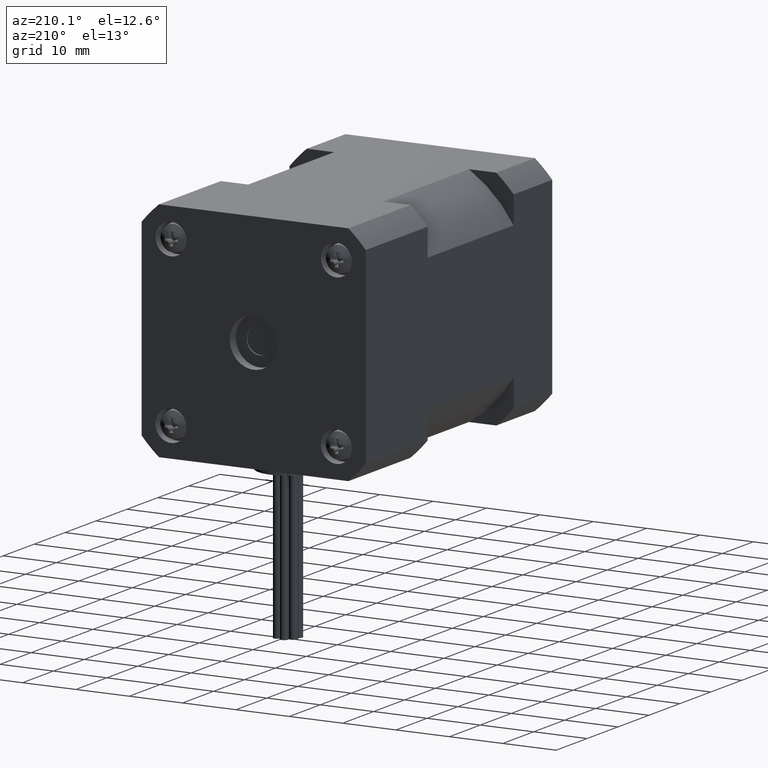
[diagram: clean part render]
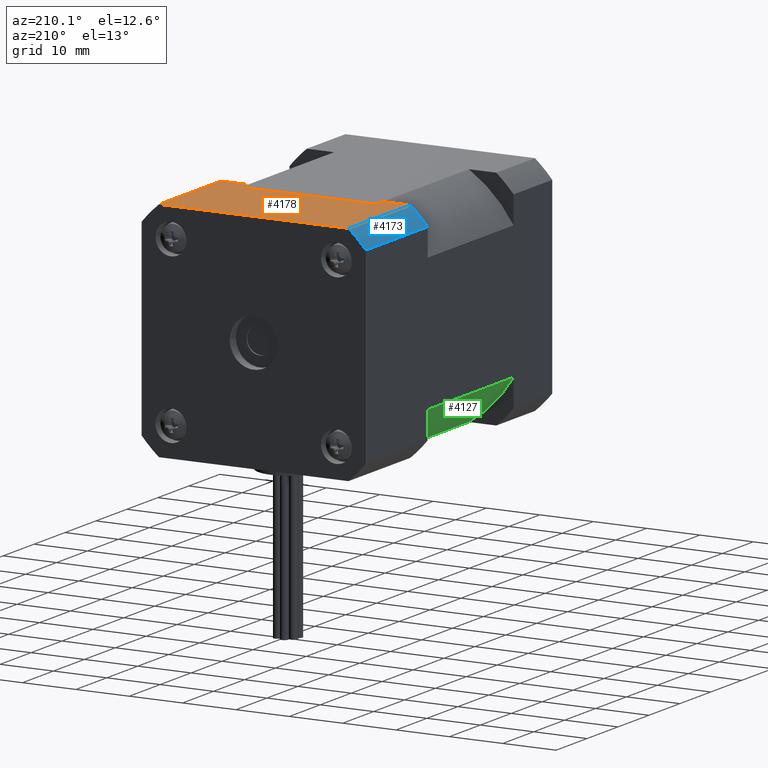
[diagram: same view with three faces highlighted in distinct colors, each labeled with its STEP entity id]
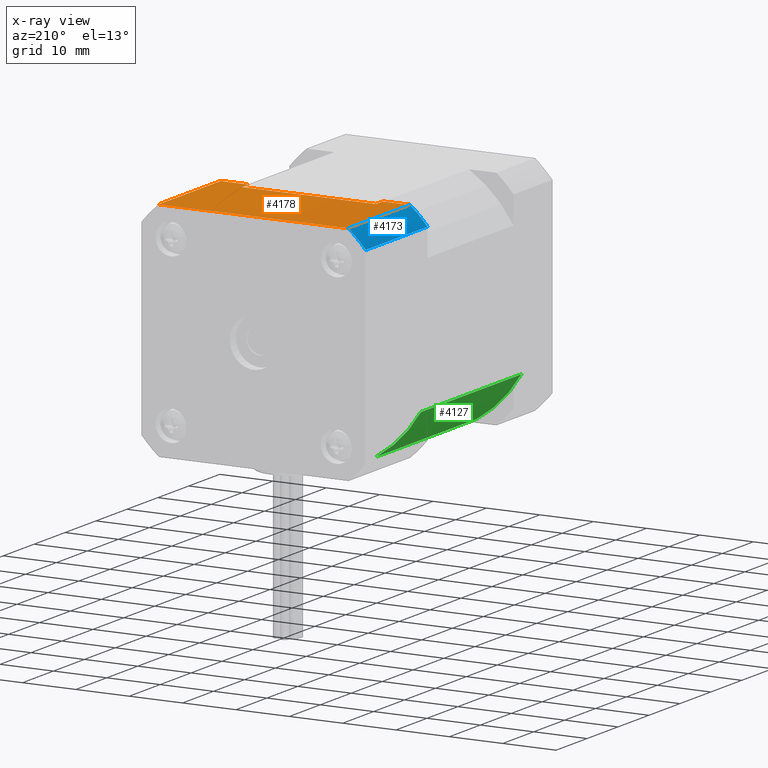
[diagram: x-ray of the same camera — body ghosted, the three highlighted faces saturated]
A machine part, auxiliary view with three faces highlighted in distinct colors.
The next image is the same camera in x-ray (body ghosted, the three faces saturated) — at least one of them is partly hidden behind the body in this view.
Their STEP definitions:

[orange] entity #4178 — the highlighted planar face has unit normal (0, 0, 1).
#223=PLANE('',#4509);
#361=LINE('',#6354,#583);
#365=LINE('',#6366,#587);
#369=LINE('',#6379,#591);
#382=LINE('',#6408,#604);
#384=LINE('',#6417,#606);
#385=LINE('',#6420,#607);
#390=LINE('',#6438,#612);
#391=LINE('',#6440,#613);
#583=VECTOR('',#5110,2.52388589282479);
#587=VECTOR('',#5120,0.22);
#591=VECTOR('',#5134,0.22);
#604=VECTOR('',#5157,0.513585144044074);
#606=VECTOR('',#5169,0.513585144044074);
#607=VECTOR('',#5172,2.);
#612=VECTOR('',#5195,2.);
#613=VECTOR('',#5198,3.55105618091294);
#912=FACE_OUTER_BOUND('',#1200,.T.);
#1200=EDGE_LOOP('',(#2877,#2878,#2879,#2880,#2881,#2882,#2883,#2884));
#1767=VERTEX_POINT('',#6351);
#1768=VERTEX_POINT('',#6353);
#1773=VERTEX_POINT('',#6365);
#1777=VERTEX_POINT('',#6377);
#1788=VERTEX_POINT('',#6407);
#1790=VERTEX_POINT('',#6415);
#1791=VERTEX_POINT('',#6419);
#1795=VERTEX_POINT('',#6436);
#2183=EDGE_CURVE('',#1768,#1767,#361,.T.);
#2189=EDGE_CURVE('',#1773,#1768,#365,.T.);
#2196=EDGE_CURVE('',#1767,#1777,#369,.T.);
#2210=EDGE_CURVE('',#1788,#1773,#382,.T.);
#2215=EDGE_CURVE('',#1777,#1790,#384,.T.);
#2216=EDGE_CURVE('',#1788,#1791,#385,.T.);
#2226=EDGE_CURVE('',#1790,#1795,#390,.T.);
#2227=EDGE_CURVE('',#1791,#1795,#391,.T.);
#2877=ORIENTED_EDGE('',*,*,#2196,.T.);
#2878=ORIENTED_EDGE('',*,*,#2215,.T.);
#2879=ORIENTED_EDGE('',*,*,#2226,.T.);
#2880=ORIENTED_EDGE('',*,*,#2227,.F.);
#2881=ORIENTED_EDGE('',*,*,#2216,.F.);
#2882=ORIENTED_EDGE('',*,*,#2210,.T.);
#2883=ORIENTED_EDGE('',*,*,#2189,.T.);
#2884=ORIENTED_EDGE('',*,*,#2183,.T.);
#4178=ADVANCED_FACE('',(#912),#223,.T.);
#4509=AXIS2_PLACEMENT_3D('',#6439,#5196,#5197);
#5110=DIRECTION('',(1.,-1.53723188025022E-16,-1.66533453693774E-16));
#5120=DIRECTION('',(1.53723188025022E-16,1.,-1.24501532695106E-16));
#5134=DIRECTION('',(-1.53723188025022E-16,-1.,1.24501532695106E-16));
#5157=DIRECTION('',(1.,-1.53723188025022E-16,-1.66533453693774E-16));
#5169=DIRECTION('',(1.,-1.53723188025022E-16,-1.66533453693774E-16));
#5172=DIRECTION('',(1.53723188025022E-16,1.,-1.24501532695106E-16));
#5195=DIRECTION('',(1.53723188025022E-16,1.,-1.24501532695106E-16));
#5196=DIRECTION('center_axis',(1.66533453693774E-16,1.24501532695106E-16,
1.));
#5197=DIRECTION('ref_axis',(1.,-2.22044604925031E-16,0.));
#5198=DIRECTION('',(1.,-1.53723188025022E-16,-1.66533453693774E-16));
#6351=CARTESIAN_POINT('',(0.84668299311342,1.91264350961966,3.54780279227959));
#6353=CARTESIAN_POINT('',(-1.67720289971137,1.91264350961966,3.54780279227959));
#6354=CARTESIAN_POINT('',(-0.415259953298977,1.91264350961966,3.54780279227959));
#6365=CARTESIAN_POINT('',(-1.67720289971137,1.69264350961966,3.54780279227959));
#6366=CARTESIAN_POINT('',(-1.67720289971137,1.69264350961966,3.54780279227959));
#6377=CARTESIAN_POINT('',(0.84668299311342,1.69264350961966,3.54780279227959));
#6379=CARTESIAN_POINT('',(0.84668299311342,1.69264350961966,3.54780279227959));
#6407=CARTESIAN_POINT('',(-2.19078804375545,1.69264350961966,3.54780279227959));
#6408=CARTESIAN_POINT('',(-2.19078804375545,1.69264350961966,3.54780279227959));
#6415=CARTESIAN_POINT('',(1.36026813715749,1.69264350961966,3.54780279227959));
#6417=CARTESIAN_POINT('',(-2.19078804375545,1.69264350961966,3.54780279227959));
#6419=CARTESIAN_POINT('',(-2.19078804375545,3.69264350961966,3.54780279227959));
#6420=CARTESIAN_POINT('',(-2.19078804375545,1.69264350961966,3.54780279227959));
#6436=CARTESIAN_POINT('',(1.36026813715749,3.69264350961966,3.54780279227959));
#6438=CARTESIAN_POINT('',(1.36026813715749,1.69264350961966,3.54780279227959));
#6439=CARTESIAN_POINT('Origin',(-0.415259953298977,1.69264350961966,3.54780279227959));
#6440=CARTESIAN_POINT('',(-2.19078804375545,3.69264350961966,3.54780279227959));

[blue] entity #4173 — the highlighted cylindrical surface (partial cylindrical patch) has radius 27.5 mm, axis along (0, 1, -0).
#378=LINE('',#6400,#600);
#385=LINE('',#6420,#607);
#600=VECTOR('',#5151,2.);
#607=VECTOR('',#5172,2.);
#907=FACE_OUTER_BOUND('',#1195,.T.);
#1195=EDGE_LOOP('',(#2853,#2854,#2855,#2856));
#1514=CIRCLE('',#4494,2.75);
#1517=CIRCLE('',#4500,2.75);
#1784=VERTEX_POINT('',#6397);
#1785=VERTEX_POINT('',#6399);
#1788=VERTEX_POINT('',#6407);
#1791=VERTEX_POINT('',#6419);
#2206=EDGE_CURVE('',#1784,#1785,#378,.T.);
#2211=EDGE_CURVE('',#1784,#1788,#1514,.T.);
#2216=EDGE_CURVE('',#1788,#1791,#385,.T.);
#2217=EDGE_CURVE('',#1785,#1791,#1517,.T.);
#2853=ORIENTED_EDGE('',*,*,#2211,.T.);
#2854=ORIENTED_EDGE('',*,*,#2216,.T.);
#2855=ORIENTED_EDGE('',*,*,#2217,.F.);
#2856=ORIENTED_EDGE('',*,*,#2206,.F.);
#3816=CYLINDRICAL_SURFACE('',#4499,2.75);
#4173=ADVANCED_FACE('',(#907),#3816,.T.);
#4494=AXIS2_PLACEMENT_3D('',#6409,#5158,#5159);
#4499=AXIS2_PLACEMENT_3D('',#6418,#5170,#5171);
#4500=AXIS2_PLACEMENT_3D('',#6421,#5173,#5174);
#5151=DIRECTION('',(1.53723188025022E-16,1.,-1.24501532695106E-16));
#5158=DIRECTION('center_axis',(1.53723188025022E-16,1.,-1.24501532695106E-16));
#5159=DIRECTION('ref_axis',(-0.763636363636364,1.9777260489367E-16,0.645646578347808));
#5170=DIRECTION('center_axis',(1.53723188025022E-16,1.,-1.24501532695106E-16));
#5171=DIRECTION('ref_axis',(-0.763636363636364,1.9777260489367E-16,0.645646578347808));
#5172=DIRECTION('',(1.53723188025022E-16,1.,-1.24501532695106E-16));
#5173=DIRECTION('center_axis',(1.53723188025022E-16,1.,-1.24501532695106E-16));
#5174=DIRECTION('ref_axis',(-0.763636363636364,1.9777260489367E-16,0.645646578347808));
#6397=CARTESIAN_POINT('',(-2.51525995329898,1.69264350961966,3.22333088273606));
#6399=CARTESIAN_POINT('',(-2.51525995329898,3.69264350961966,3.22333088273606));
#6400=CARTESIAN_POINT('',(-2.51525995329898,1.69264350961966,3.22333088273606));
#6407=CARTESIAN_POINT('',(-2.19078804375545,1.69264350961966,3.54780279227959));
#6409=CARTESIAN_POINT('Origin',(-0.415259953298977,1.69264350961966,1.44780279227959));
#6418=CARTESIAN_POINT('Origin',(-0.415259953298977,1.69264350961966,1.44780279227959));
#6419=CARTESIAN_POINT('',(-2.19078804375545,3.69264350961966,3.54780279227959));
#6420=CARTESIAN_POINT('',(-2.19078804375545,1.69264350961966,3.54780279227959));
#6421=CARTESIAN_POINT('Origin',(-0.415259953298977,3.69264350961966,1.44780279227959));

[green] entity #4127 — the highlighted cylindrical surface (partial cylindrical patch) has radius 24.5 mm, axis along (-0, 1, -0).
#330=LINE('',#6200,#552);
#331=LINE('',#6203,#553);
#552=VECTOR('',#4937,3.25);
#553=VECTOR('',#4940,3.25);
#861=FACE_OUTER_BOUND('',#1124,.T.);
#1124=EDGE_LOOP('',(#2676,#2677,#2678,#2679));
#1472=CIRCLE('',#4409,2.45);
#1473=CIRCLE('',#4410,2.45);
#1714=VERTEX_POINT('',#6196);
#1715=VERTEX_POINT('',#6197);
#1716=VERTEX_POINT('',#6199);
#1717=VERTEX_POINT('',#6201);
#2116=EDGE_CURVE('',#1714,#1715,#1472,.T.);
#2117=EDGE_CURVE('',#1715,#1716,#330,.T.);
#2118=EDGE_CURVE('',#1717,#1716,#1473,.T.);
#2119=EDGE_CURVE('',#1714,#1717,#331,.T.);
#2676=ORIENTED_EDGE('',*,*,#2116,.T.);
#2677=ORIENTED_EDGE('',*,*,#2117,.T.);
#2678=ORIENTED_EDGE('',*,*,#2118,.F.);
#2679=ORIENTED_EDGE('',*,*,#2119,.F.);
#3795=CYLINDRICAL_SURFACE('',#4408,2.45);
#4127=ADVANCED_FACE('',(#861),#3795,.T.);
#4408=AXIS2_PLACEMENT_3D('',#6195,#4933,#4934);
#4409=AXIS2_PLACEMENT_3D('',#6198,#4935,#4936);
#4410=AXIS2_PLACEMENT_3D('',#6202,#4938,#4939);
#4933=DIRECTION('center_axis',(-6.0767174219161E-33,1.,-1.24501532695106E-16));
#4934=DIRECTION('ref_axis',(-0.515078753637712,-1.06715599452948E-16,-0.857142857142857));
#4935=DIRECTION('center_axis',(-6.0767174219161E-33,1.,-1.24501532695106E-16));
#4936=DIRECTION('ref_axis',(-0.515078753637712,-1.06715599452948E-16,-0.857142857142857));
#4937=DIRECTION('',(-6.0767174219161E-33,1.,-1.24501532695106E-16));
#4938=DIRECTION('center_axis',(-6.0767174219161E-33,1.,-1.24501532695106E-16));
#4939=DIRECTION('ref_axis',(-0.515078753637712,-1.06715599452948E-16,-0.857142857142857));
#4940=DIRECTION('',(-6.0767174219161E-33,1.,-1.24501532695106E-16));
#6195=CARTESIAN_POINT('Origin',(-0.415259953298977,-1.33735649038034,1.44780279227959));
#6196=CARTESIAN_POINT('',(-1.67720289971137,-1.33735649038034,-0.652197207720413));
#6197=CARTESIAN_POINT('',(-2.51525995329898,-1.33735649038034,0.185859845867192));
#6198=CARTESIAN_POINT('Origin',(-0.415259953298977,-1.33735649038034,1.44780279227959));
#6199=CARTESIAN_POINT('',(-2.51525995329898,1.91264350961966,0.185859845867192));
#6200=CARTESIAN_POINT('',(-2.51525995329898,-1.33735649038034,0.185859845867192));
#6201=CARTESIAN_POINT('',(-1.67720289971137,1.91264350961966,-0.652197207720414));
#6202=CARTESIAN_POINT('Origin',(-0.415259953298977,1.91264350961966,1.44780279227959));
#6203=CARTESIAN_POINT('',(-1.67720289971137,-1.33735649038034,-0.652197207720413));